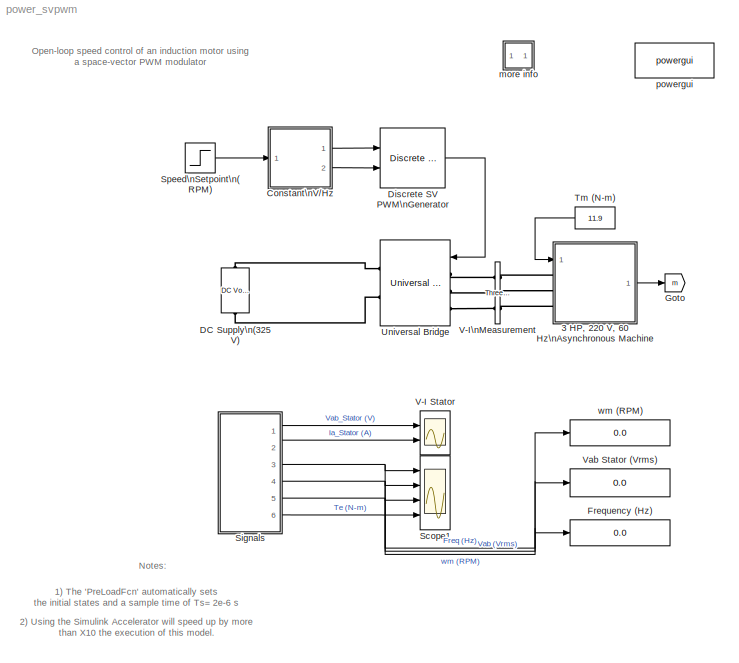
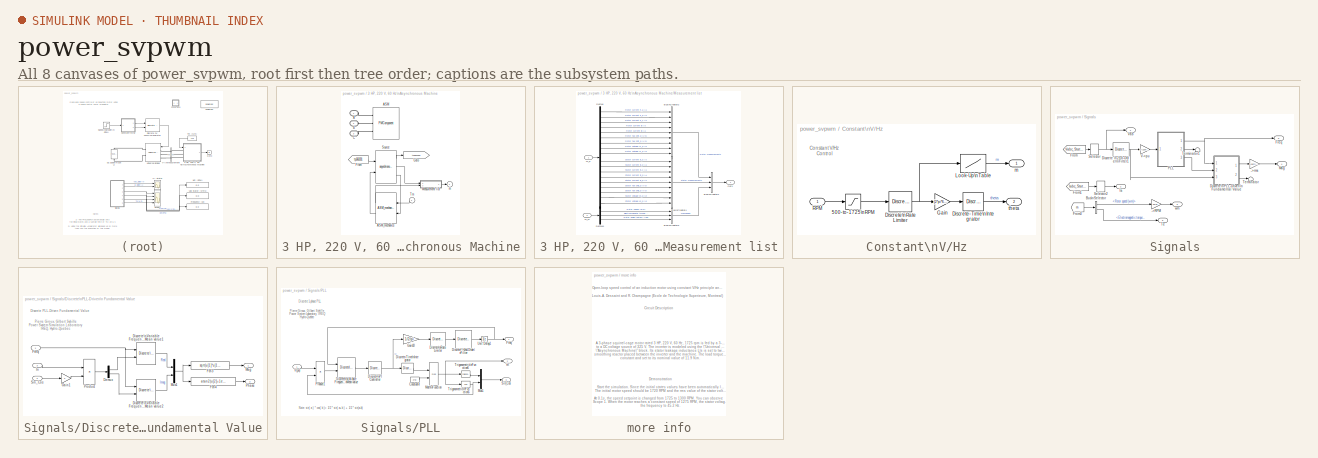
[diagram: thumbnail index - all 8 canvases of the model, root first then tree order]
MODEL power_svpwm
KIND model
CONFIG PreLoadFcn = Ts=2e-6;load xinit_power_svpwm;
BLOCK [SubSystem] 3 HP, 220 V, 60 Hz\nAsynchronous Machine
  AncestorBlock = powerlib/Machines/Asynchronous Machine\nSI Units
  CopyFcn = powericon('psbloadfunction',gcbh,'gotofrom','UpdateGotoTag');
  MaskCallbackString = powericon('AsynchronousMachineCback',gcb,'SI');|powericon('AsynchronousMachineCback',gcb);|powericon('AsynchronousMachineCback',gcb);|||||||||
  MaskDescription = Implements a three-phase asynchronous machine (wound rotor or squirrel cage)\nmodeled in the dq rotor reference frame. Stator and rotor windings are connected\nin wye to an internal neutral point. You can specify initial values for stator and rotor\ncurrents or for  the stator current only.
  MaskDisplay = plot(-55,-30,55,90,p1,p2,p3,p4,p5,p6,p7,p8,p15,p16);color('blue');plot([-30,-10,-10],[70,70,55]);
  MaskEnableString = on,on,on,on,on,on,on,on,on,on,on,on
  MaskHelp = web(psbhelp);
  MaskIconFrame = off
  MaskIconOpaque = off
  MaskIconRotate = port
  MaskIconUnits = autoscale
  MaskInitialization = block = gcb;\nctrl = ReferenceFrame;\none_third=1/3; \nsqrt3_3=sqrt(3)/3;\nsqrt3=sqrt(3);\nswitch RotorType\n    case 1, selWidth=6; elements1=3:6; elements2=1:4;\n    case 2, selWidth=4; elements1=1:4; elements2=3:4;\nend\npowericon('psbloadfunction',block,'gotofrom','Initialize');\n[NominalParameters,Stator,Rotor,Lm,Mechanical,InitialConditions] = powericon('AsynchronousMachineConvert',NominalPa...<+467ch>
  MaskPromptString = Preset model:|-----------------  Show detailed parameters ----------------- |Rotor type:|Reference frame:|Nominal power, voltage (line-line), and frequency [ Pn(VA),Vn(Vrms),fn(Hz) ]:|Stator resistance and inductance[ Rs(ohm)  Lls(H) ]:|Rotor resistance and inductance [ Rr'(ohm)  Llr'(H) ]:|Mutual inductance Lm (H):|Inertia, friction factor and pairs of poles [ J(kg.m^2)  F(N.m.s)  p() ]:|Initial ...<+39ch>
  MaskSelfModifiable = on
  MaskStyleString = popup(No|01:  5 HP   460 V 60Hz 1750 RPM           |02:  10 HP  460 V 60Hz 1760 RPM          |03:  20 HP  460 V 60Hz 1760 RPM          |04:  50 HP  460 V 60Hz 1780 RPM          |05:  100 HP 460 V 60Hz 1780 RPM         |06:  150 HP 460 V 60Hz 1785 RPM         |07:  200 HP 460 V 60Hz 1785 RPM         |08:  5 HP   575 V 60Hz 1750 RPM           |09:  10 HP  575 V 60Hz 1760 RPM          |10:  20 HP  57...<+594ch>
  MaskTabNameString = ,,,,,,,,,,,
  MaskToolTipString = on,on,on,on,on,on,on,on,on,on,on,on
  MaskTunableValueString = on,on,off,on,on,on,on,on,on,on,off,off
  MaskType = Asynchronous Machine
  MaskValueString = No|on|Squirrel-cage|Stationary|[ 3*746, 220, 60 ]|[ 0.435  2*2.0e-3 ]|[ 0.816  2.0e-3 ]|69.31e-3|[ 0.089  0  2 ]|[0.044533 0 11.138 11.138 11.138 -39.6 -159.6 80.4]|1|2000
  MaskVarAliasString = ,,,,,,,,,,,
  MaskVariables = PresetModel=@1;ShowDetailedParameters=@2;RotorType=@3;ReferenceFrame=@4;NominalParameters=@5;Stator=@6;Rotor=@7;Lm=@8;Mechanical=@9;InitialConditions=@10;Units=@11;LoadFlowParameters=@12;
  MaskVisibilityString = on,on,on,on,on,on,on,on,on,on,off,off
  MinAlgLoopOccurrences = off
  Ports = [1, 1, 0, 0, 0, 3]
  RTWSystemCode = Auto
  TreatAsAtomicUnit = off
BLOCK [PMIOPort] 3 HP, 220 V, 60 Hz\nAsynchronous Machine/A
  Port = 1
  Side = Left
BLOCK [PMComponent] 3 HP, 220 V, 60 Hz\nAsynchronous Machine/ASM
  LConnTagsString = A|B|C
  LeftPortType = p1
  MaskIconFrame = on
  MaskIconOpaque = on
  MaskIconRotate = none
  MaskIconUnits = autoscale
  MaskType = InnerPowersysBlock
  PhysicalDomain = powersysdomain
  Ports = [0, 0, 0, 0, 0, 3, 3]
  RConnTagsString = a|b|c
  RightPortType = p1
BLOCK [Reference] 3 HP, 220 V, 60 Hz\nAsynchronous Machine/ASM_mechanics  REF=powerlib_models/Discrete/ASM_mechanics
  Ports = [2, 2]
  ShowPortLabels = on
  SourceBlock = powerlib_models/Discrete/ASM_mechanics
  SourceType = SubSystem
BLOCK [PMIOPort] 3 HP, 220 V, 60 Hz\nAsynchronous Machine/B
  Port = 2
  Side = Left
BLOCK [PMIOPort] 3 HP, 220 V, 60 Hz\nAsynchronous Machine/C
  Port = 3
  Side = Left
BLOCK [From] 3 HP, 220 V, 60 Hz\nAsynchronous Machine/From
  CloseFcn = tagdialog Close
  DialogController = Simulink.DDGSource
  GotoTag = tp361031
BLOCK [Goto] 3 HP, 220 V, 60 Hz\nAsynchronous Machine/Goto
  DialogController = Simulink.DDGSource
  GotoTag = tp361029
  TagVisibility = global
BLOCK [SubSystem] 3 HP, 220 V, 60 Hz\nAsynchronous Machine/Measurement list
  MinAlgLoopOccurrences = off
  Ports = [2, 1]
  RTWSystemCode = Auto
  TreatAsAtomicUnit = off
BLOCK [BusCreator] 3 HP, 220 V, 60 Hz\nAsynchronous Machine/Measurement list/Bus\nCreator1
  DialogController = Simulink.DDGSource_Bus
  DisplayOption = bar
  Inputs = 3
  Ports = [3, 1]
BLOCK [BusCreator] 3 HP, 220 V, 60 Hz\nAsynchronous Machine/Measurement list/Bus\nCreator2
  DialogController = Simulink.DDGSource_Bus
  DisplayOption = bar
  Inputs = 9
  Ports = [9, 1]
BLOCK [BusCreator] 3 HP, 220 V, 60 Hz\nAsynchronous Machine/Measurement list/Bus\nCreator3
  DialogController = Simulink.DDGSource_Bus
  DisplayOption = bar
  Inputs = 3
  Ports = [3, 1]
BLOCK [BusCreator] 3 HP, 220 V, 60 Hz\nAsynchronous Machine/Measurement list/Bus\nCreator4
  DialogController = Simulink.DDGSource_Bus
  DisplayOption = bar
  Inputs = 9
  Ports = [9, 1]
BLOCK [Demux] 3 HP, 220 V, 60 Hz\nAsynchronous Machine/Measurement list/Demux
  DisplayOption = bar
  Outputs = [1,1,1,1,1,1,1,1,1,1,1,1,1,1,1,1,1,1]
  Ports = [1, 18]
BLOCK [Demux] 3 HP, 220 V, 60 Hz\nAsynchronous Machine/Measurement list/Demux1
  DisplayOption = bar
  Outputs = [1,1,1]
  Ports = [1, 3]
BLOCK [Outport] 3 HP, 220 V, 60 Hz\nAsynchronous Machine/Measurement list/Out1
  BusOutputAsStruct = off
  IconDisplay = Port number
BLOCK [Inport] 3 HP, 220 V, 60 Hz\nAsynchronous Machine/Measurement list/m_e
  IconDisplay = Port number
  LatchInput = off
  Port = 1
BLOCK [Inport] 3 HP, 220 V, 60 Hz\nAsynchronous Machine/Measurement list/m_m
  IconDisplay = Port number
  LatchInput = off
  Port = 2
BLOCK [Reference] 3 HP, 220 V, 60 Hz\nAsynchronous Machine/Source  REF=powerlib_models/Discrete/asynchronous_machine
  Ports = [2, 3]
  ShowPortLabels = on
  SourceBlock = powerlib_models/Discrete/asynchronous_machine
  SourceType = SubSystem
BLOCK [Inport] 3 HP, 220 V, 60 Hz\nAsynchronous Machine/Tm
  IconDisplay = Port number
  LatchInput = off
  Port = 1
BLOCK [Outport] 3 HP, 220 V, 60 Hz\nAsynchronous Machine/m
  BusOutputAsStruct = off
  IconDisplay = Port number
  InitialOutput = 0
BLOCK [SubSystem] Constant\nV//Hz
  MinAlgLoopOccurrences = off
  Ports = [1, 2]
  RTWSystemCode = Auto
  TreatAsAtomicUnit = off
BLOCK [Saturate] Constant\nV//Hz/500-to-1725\nRPM
  LowerLimit = 500
  UpperLimit = 1725
BLOCK [DiscreteIntegrator] Constant\nV//Hz/Discrete-Time\nIntegrator
  ExternalReset = none
  ICPrevOutput = DiscIntNeverNeededParam
  ICPrevScaledInput = DiscIntNeverNeededParam
  InitialConditionSource = internal
  IntegratorMethod = Integration: Forward Euler
  Ports = [1, 1]
  SampleTime = Ts
BLOCK [Reference] Constant\nV//Hz/Discrete\nRate Limiter  REF=powerlib_extras/Discrete \nControl Blocks/Discrete\nRate Limiter
  F = -500
  Ports = [1, 1]
  R = 500
  ShowPortLabels = on
  SourceBlock = powerlib_extras/Discrete \nControl Blocks/Discrete\nRate Limiter
  SourceType = Unknown
  Ts = Ts
  Vinit = 1725
BLOCK [Gain] Constant\nV//Hz/Gain
  Gain = (2*pi*60)/1725
BLOCK [Lookup] Constant\nV//Hz/Look-Up\nTable
  DialogController = Simulink.DDGSource
  InputValues = [500 1725 2500]
  OutputValues = [0.29 1 1]*0.957
BLOCK [Inport] Constant\nV//Hz/RPM
  IconDisplay = Port number
  LatchInput = off
  Port = 1
BLOCK [Outport] Constant\nV//Hz/m
  BusOutputAsStruct = off
  IconDisplay = Port number
BLOCK [Outport] Constant\nV//Hz/theta
  BusOutputAsStruct = off
  IconDisplay = Port number
  Port = 2
BLOCK [Reference] DC Supply\n(325 V)  REF=powerlib/Electrical\nSources/DC Voltage Source
  Amplitude = 325
  Measurements = None
  Ports = [0, 0, 0, 0, 0, 1, 1]
  ShowPortLabels = on
  SourceBlock = powerlib/Electrical\nSources/DC Voltage Source
  SourceType = DC Voltage Source
BLOCK [Reference] Discrete SV PWM\nGenerator  REF=powerlib_extras/Discrete \nControl Blocks/Discrete SV PWM\nGenerator
  Fc = 1980
  InputType = Magnitude-Angle (rad)
  ParUref = [0.8 -30 50]
  Ports = [2, 1]
  ShowPortLabels = on
  SourceBlock = powerlib_extras/Discrete \nControl Blocks/Discrete SV PWM\nGenerator
  SourceType = Discrete SV PWM Generator
  SwitchingPattern = Pattern #1
  Ts = Ts
BLOCK [Display] Frequency (Hz)
  Decimation = 1
  Format = bank
  Ports = [1]
  SampleTime = Ts*1000
BLOCK [Goto] Goto
  DialogController = Simulink.DDGSource
  GotoTag = m
  TagVisibility = global
BLOCK [Scope] Scope1
  DataFormat = StructureWithTime
  LimitDataPoints = off
  NumInputPorts = 4
  Ports = [4]
  SampleInput = on
  SampleTime = Ts*100
  SaveName = VI_Stator1
  TimeRange = 1.5
  YMax = 1585~220.05~60.0005~60
  YMin = 1550~219.825~59.997~-30
  ZoomMode = yonly
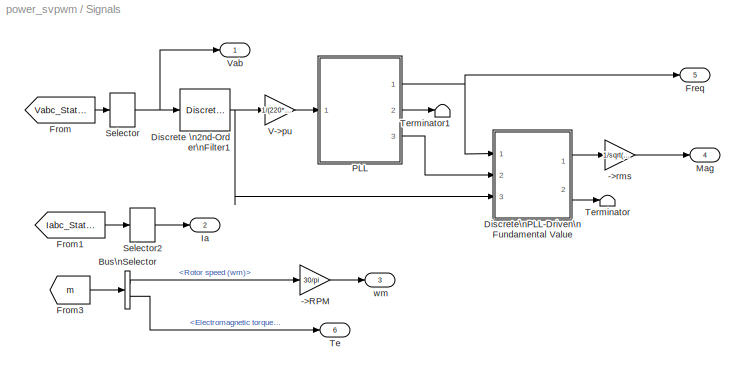
BLOCK [SubSystem] Signals
  MinAlgLoopOccurrences = off
  Ports = [0, 6]
  RTWSystemCode = Auto
  TreatAsAtomicUnit = off
BLOCK [Gain] Signals/->RPM
  Gain = 30/pi
BLOCK [Gain] Signals/->rms
  Gain = 1/sqrt(2)
BLOCK [BusSelector] Signals/Bus\nSelector
  DialogController = Simulink.DDGSource_Bus
  OutputSignals = Mechanical.Rotor speed (wm),Mechanical.Electromagnetic torque Te (N*m)
  Ports = [1, 2]
BLOCK [Reference] Signals/Discrete \n2nd-Order\nFilter1  REF=powerlib_extras/Discrete \nControl Blocks/Discrete \n2nd-Order\nFilter
  FilterType = Lowpass
  Fo = 2000
  Initialize = on
  PlotResponse = off
  Ports = [1, 1]
  ShowPortLabels = on
  SourceBlock = powerlib_extras/Discrete \nControl Blocks/Discrete \n2nd-Order\nFilter
  SourceType = Discrete 2nd-Order Filter
  Ts = Ts
  Vac_Init = [1 30 60]
  Vdc_Init = 0
  Zeta = 0.707
  param1 = [1 500 1]
BLOCK [SubSystem] Signals/Discrete\nPLL-Driven\n Fundamental Value
  MaskCallbackString = ||
  MaskDescription = This discrete block computes the fundamental value of the input signal (port In) over a running window of one cycle of a specified fundamental frequency (port Freq). Input port \"Sin_Cos\" (a two-dimension signal) provides the reference frame required for the computation.. \n First and second outputs return respectively the magnitude and phase (in degrees relative to the PLL phase) of the fundamen...<+129ch>
  MaskEnableString = on,on,on
  MaskIconFrame = on
  MaskIconOpaque = on
  MaskIconRotate = none
  MaskIconUnits = autoscale
  MaskInitialization = Real_Init=Par_Init(1)*cos(pi/180*Par_Init(2));\nImag_Init=Par_Init(1)*sin(pi/180*Par_Init(2));\n\n\n
  MaskPromptString = Initial fundamental frequency (Hz):|Initial input: [ Mag  Phase-relative-to-PLL(degrees) ]|Sample time:
  MaskStyleString = edit,edit,edit
  MaskTabNameString = ,,
  MaskToolTipString = on,on,on
  MaskTunableValueString = on,on,on
  MaskType = Discrete PLL-Driven Fundamental Value
  MaskValueString = 60|[220*sqrt(2) 0]|Ts*20
  MaskVarAliasString = ,,
  MaskVariables = Finit=@1;Par_Init=@2;Ts=@3;
  MaskVisibilityString = on,on,on
  MinAlgLoopOccurrences = off
  Ports = [3, 2]
  RTWSystemCode = Auto
  TreatAsAtomicUnit = off
BLOCK [Demux] Signals/Discrete\nPLL-Driven\n Fundamental Value/Demux
  Outputs = 2
  Ports = [1, 2]
BLOCK [Reference] Signals/Discrete\nPLL-Driven\n Fundamental Value/Discrete\nVariable Frequency\nMean value1  REF=powerlib_extras/Discrete\nMeasurements/Discrete\nVariable Frequency\nMean value
  Finit = Finit
  Fmin = 20
  Ports = [2, 1]
  ShowPortLabels = on
  SourceBlock = powerlib_extras/Discrete\nMeasurements/Discrete\nVariable Frequency\nMean value
  SourceType = Discrete Variable-Frequency Mean Value
  Ts = Ts
  Vinit = Real_Init
BLOCK [Reference] Signals/Discrete\nPLL-Driven\n Fundamental Value/Discrete\nVariable Frequency\nMean value2  REF=powerlib_extras/Discrete\nMeasurements/Discrete\nVariable Frequency\nMean value
  Finit = Finit
  Fmin = 20
  Ports = [2, 1]
  ShowPortLabels = on
  SourceBlock = powerlib_extras/Discrete\nMeasurements/Discrete\nVariable Frequency\nMean value
  SourceType = Discrete Variable-Frequency Mean Value
  Ts = Ts
  Vinit = Imag_Init
BLOCK [Fcn] Signals/Discrete\nPLL-Driven\n Fundamental Value/Fcn3
  Expr = sqrt(u[1]*u[1]+u[2]*u[2])
BLOCK [Fcn] Signals/Discrete\nPLL-Driven\n Fundamental Value/Fcn4
  Expr = atan2(u[2]+1e-6,u[1])*180/pi
BLOCK [Inport] Signals/Discrete\nPLL-Driven\n Fundamental Value/Freq
  IconDisplay = Port number
  LatchInput = off
  Port = 1
BLOCK [Gain] Signals/Discrete\nPLL-Driven\n Fundamental Value/Gain1
  Gain = 2
BLOCK [Inport] Signals/Discrete\nPLL-Driven\n Fundamental Value/In
  IconDisplay = Port number
  LatchInput = off
  Port = 3
BLOCK [Outport] Signals/Discrete\nPLL-Driven\n Fundamental Value/Mag
  BusOutputAsStruct = off
  IconDisplay = Port number
BLOCK [Mux] Signals/Discrete\nPLL-Driven\n Fundamental Value/Mux1
  Inputs = 2
  Ports = [2, 1]
BLOCK [Outport] Signals/Discrete\nPLL-Driven\n Fundamental Value/Phase
  BusOutputAsStruct = off
  IconDisplay = Port number
  Port = 2
BLOCK [Product] Signals/Discrete\nPLL-Driven\n Fundamental Value/Product
  Ports = [2, 1]
  RndMeth = Floor
BLOCK [Inport] Signals/Discrete\nPLL-Driven\n Fundamental Value/Sin_Cos
  IconDisplay = Port number
  LatchInput = off
  Port = 2
BLOCK [Outport] Signals/Freq
  BusOutputAsStruct = off
  IconDisplay = Port number
  Port = 5
BLOCK [From] Signals/From
  CloseFcn = tagdialog Close
  DialogController = Simulink.DDGSource
  GotoTag = Vabc_Stator
BLOCK [From] Signals/From1
  CloseFcn = tagdialog Close
  DialogController = Simulink.DDGSource
  GotoTag = Iabc_Stator
BLOCK [From] Signals/From3
  CloseFcn = tagdialog Close
  DialogController = Simulink.DDGSource
  GotoTag = m
BLOCK [Outport] Signals/Ia
  BusOutputAsStruct = off
  IconDisplay = Port number
  Port = 2
BLOCK [Outport] Signals/Mag
  BusOutputAsStruct = off
  IconDisplay = Port number
  Port = 4
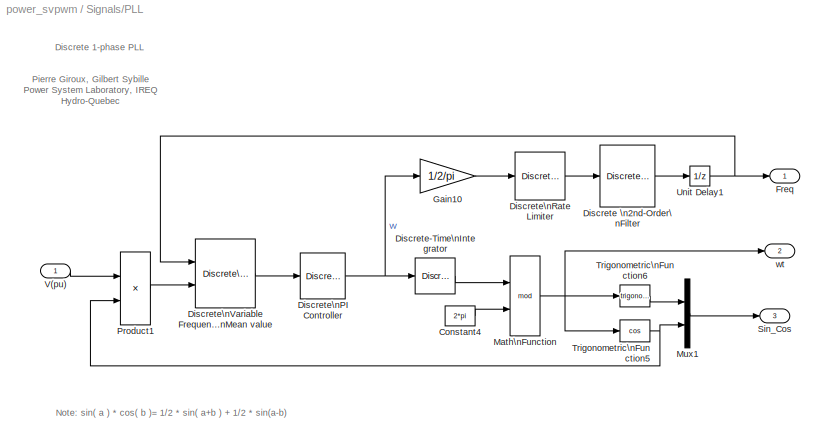
BLOCK [SubSystem] Signals/PLL
  MaskCallbackString = ||
  MaskDescription = This Phase Locked Loop (PLL) system can be used  to synchronize on a variable frequency sinusoidal signal.\n\nInput 1: Normalized input signal V(pu)\n\nOutput 1:  Measured frequency (Hz) = w/(2pi)\nOutput 2:  Ramp w.t  varying between  0 and 2*pi, synchronized on the zero-crossing (rising) of  the input signal\nOutput 3: Vector [sin(wt) cos(wt)]\n
  MaskEnableString = on,on,on
  MaskIconFrame = on
  MaskIconOpaque = on
  MaskIconRotate = none
  MaskIconUnits = autoscale
  MaskInitialization = Kp=ParK(1);\nKi=ParK(2);\nPhase_Init=Par_Init(1);\nFinit=Par_Init(2);
  MaskPromptString = Initial input:[ Phase(degrees)   Frequency(Hz) ]|Regulator gains [ Kp  Ki ]|Sample time:
  MaskStyleString = edit,edit,edit
  MaskTabNameString = ,,
  MaskToolTipString = on,on,on
  MaskTunableValueString = on,on,on
  MaskType = Discrete 1-phase PLL
  MaskValueString = [27.52 60]|[120 2800]|Ts*20
  MaskVarAliasString = ,,
  MaskVariables = Par_Init=@1;ParK=@2;Ts=@3;
  MaskVisibilityString = on,on,on
  MinAlgLoopOccurrences = off
  Ports = [1, 3]
  RTWSystemCode = Auto
  TreatAsAtomicUnit = off
BLOCK [Constant] Signals/PLL/Constant4
  Value = 2*pi
BLOCK [Reference] Signals/PLL/Discrete \n2nd-Order\nFilter  REF=powerlib_extras/Discrete \nControl Blocks/Discrete \n2nd-Order\nFilter
  FilterType = Lowpass
  Fo = 25
  Initialize = on
  PlotResponse = off
  Ports = [1, 1]
  ShowPortLabels = on
  SourceBlock = powerlib_extras/Discrete \nControl Blocks/Discrete \n2nd-Order\nFilter
  SourceType = Discrete 2nd-Order Filter
  Ts = Ts
  Vac_Init = [0 0  Finit]
  Vdc_Init = Finit
  Zeta = 0.707
  param1 = [1 500 0.1]
BLOCK [DiscreteIntegrator] Signals/PLL/Discrete-Time\nIntegrator
  ExternalReset = none
  ICPrevOutput = DiscIntNeverNeededParam
  ICPrevScaledInput = DiscIntNeverNeededParam
  InitialCondition = Phase_Init*pi/180
  InitialConditionSource = internal
  IntegratorMethod = Integration: Forward Euler
  LowerSaturationLimit = 0
  Ports = [1, 1]
  SampleTime = Ts
  UpperSaturationLimit = 0
BLOCK [Reference] Signals/PLL/Discrete\nPI Controller  REF=powerlib_extras/Discrete \nControl Blocks/Discrete\nPI Controller
  Init = 2*pi*Finit
  Ki = Ki
  Kp = Kp
  Par_Limits = [4  0.25]*2*pi*Finit
  Ports = [1, 1]
  ShowPortLabels = on
  SourceBlock = powerlib_extras/Discrete \nControl Blocks/Discrete\nPI Controller
  SourceType = Discrete PI Controller
  Ts = Ts
BLOCK [Reference] Signals/PLL/Discrete\nRate Limiter  REF=powerlib_extras/Discrete \nControl Blocks/Discrete\nRate Limiter
  F = -30
  Ports = [1, 1]
  R = 30
  ShowPortLabels = on
  SourceBlock = powerlib_extras/Discrete \nControl Blocks/Discrete\nRate Limiter
  SourceType = Unknown
  Ts = Ts
  Vinit = Finit
BLOCK [Reference] Signals/PLL/Discrete\nVariable Frequency\nMean value  REF=powerlib_extras/Discrete\nMeasurements/Discrete\nVariable Frequency\nMean value
  Finit = Finit
  Fmin = 10
  Ports = [2, 1]
  ShowPortLabels = on
  SourceBlock = powerlib_extras/Discrete\nMeasurements/Discrete\nVariable Frequency\nMean value
  SourceType = Discrete Variable-Frequency Mean Value
  Ts = Ts
  Vinit = 0
BLOCK [Outport] Signals/PLL/Freq
  BusOutputAsStruct = off
  IconDisplay = Port number
BLOCK [Gain] Signals/PLL/Gain10
  Gain = 1/2/pi
BLOCK [Math] Signals/PLL/Math\nFunction
  Operator = mod
  Ports = [2, 1]
BLOCK [Mux] Signals/PLL/Mux1
  DisplayOption = bar
  Inputs = 2
  Ports = [2, 1]
BLOCK [Product] Signals/PLL/Product1
  Ports = [2, 1]
  RndMeth = Floor
BLOCK [Outport] Signals/PLL/Sin_Cos
  BusOutputAsStruct = off
  IconDisplay = Port number
  Port = 3
BLOCK [Trigonometry] Signals/PLL/Trigonometric\nFunction5
  Operator = cos
  Ports = [1, 1]
BLOCK [Trigonometry] Signals/PLL/Trigonometric\nFunction6
  Ports = [1, 1]
BLOCK [UnitDelay] Signals/PLL/Unit Delay1
  SampleTime = Ts
  X0 = Finit
BLOCK [Inport] Signals/PLL/V(pu)
  IconDisplay = Port number
  LatchInput = off
  Port = 1
BLOCK [Outport] Signals/PLL/wt
  BusOutputAsStruct = off
  IconDisplay = Port number
  Port = 2
BLOCK [Selector] Signals/Selector
  Elements = [1]
  InputPortWidth = 3
  Ports = [1, 1]
BLOCK [Selector] Signals/Selector2
  Elements = [1]
  InputPortWidth = 3
  Ports = [1, 1]
BLOCK [Outport] Signals/Te
  BusOutputAsStruct = off
  IconDisplay = Port number
  Port = 6
BLOCK [Terminator] Signals/Terminator
BLOCK [Terminator] Signals/Terminator1
BLOCK [Gain] Signals/V->pu
  Gain = 1/(220*sqrt(2))
BLOCK [Outport] Signals/Vab
  BusOutputAsStruct = off
  IconDisplay = Port number
BLOCK [Outport] Signals/wm
  BusOutputAsStruct = off
  IconDisplay = Port number
  Port = 3
BLOCK [Step] Speed\nSetpoint\n(RPM)
  After = 1300
  Before = 1725
  SampleTime = Ts
  Time = 0.1
BLOCK [Constant] Tm (N-m)
  Value = 11.9
BLOCK [Reference] Universal Bridge  REF=powerlib/Power\nElectronics/Universal Bridge
  Arms = 3
  Device = MOSFET / Diodes
  ForwardVoltage = 0
  ForwardVoltages = [  0  0  ]
  GTOparameters = [ 10e-6 , 20e-6 ]
  IGBTparameters = [ 1e-6 , 2e-6 ]
  Lon = 0
  Measurements = None
  Ports = [1, 0, 0, 0, 0, 3, 2]
  Ron = 0.2e-3
  ShowPortLabels = on
  SnubberCapacitance = inf
  SnubberResistance = 1e5
  SourceBlock = powerlib/Power\nElectronics/Universal Bridge
  SourceType = Universal Bridge
BLOCK [Scope] V-I Stator
  DataFormat = StructureWithTime
  LimitDataPoints = off
  NumInputPorts = 2
  Ports = [2]
  SampleInput = on
  SampleTime = Ts*5
  SaveName = VI_Stator
  SaveToWorkspace = on
  TimeRange = 0.1
  YMax = 400~25
  YMin = -400~-25
  ZoomMode = yonly
BLOCK [Reference] V-I\nMeasurement  REF=powerlib/Measurements/Three-Phase\nV-I Measurement
  CurrentMeasurement = yes
  Ipu = off
  LabelI = Iabc_Stator
  LabelV = Vabc_Stator
  OutputType = Magnitude
  PSBequivalent = 0
  Pbase = 100e6
  PhasorSimulation = off
  Ports = [0, 0, 0, 0, 0, 3, 3]
  SetLabelI = on
  SetLabelV = on
  ShowPortLabels = on
  SourceBlock = powerlib/Measurements/Three-Phase\nV-I Measurement
  SourceType = Three-Phase VI Measurement
  Vbase = 500e3
  VoltageMeasurement = phase-to-phase
  Vpu = off
BLOCK [Display] Vab Stator (Vrms)
  Decimation = 1
  Format = bank
  Ports = [1]
  SampleTime = Ts*1000
BLOCK [SubSystem] more info
  MaskDisplay = disp('?')
  MaskIconFrame = on
  MaskIconOpaque = on
  MaskIconRotate = none
  MaskIconUnits = autoscale
  MinAlgLoopOccurrences = off
  Ports = []
  RTWSystemCode = Auto
  TreatAsAtomicUnit = off
BLOCK [Reference] powergui  REF=powerlib/powergui
  DisplayStyle = 1
  Frange = [0:2:500]
  FreqAxis = off
  MaxFrequency = 5000
  Ports = []
  Priority = 2
  RmsSteady = 1
  ShowPortLabels = on
  SourceBlock = powerlib/powergui
  SourceType = PSB option menu block
  StartTime = 0.05
  Ts = Ts
  Xlog = on
  Ylog = off
  ZoomFFT = on
  cycles = 2
  display = off
  echomessages = off
  frequency = 60
  frequencyindice = 1
  frequencyindicesteady = 1
  fundamental = 60
  methode = off
  save = off
  structure = VI_Stator
  variable = ZData
BLOCK [Display] wm (RPM)
  Decimation = 1
  Ports = [1]
  SampleTime = Ts*1000
ANNOTATION (root): 1) The 'PreLoadFcn' automatically sets \n the initial states and a sample time of Ts= 2e-6 s
ANNOTATION (root): 2) Using the Simulink Accelerator will speed up by more\n than X10 the execution of this model.
ANNOTATION (root): Notes:
ANNOTATION (root): Open-loop speed control of an induction motor using\na space-vector PWM modulator
ANNOTATION Constant\nV//Hz: Constant V/Hz\nControl
ANNOTATION Signals/Discrete\nPLL-Driven\n Fundamental Value: Discrete PLL-Driven Fundamental Value
ANNOTATION Signals/Discrete\nPLL-Driven\n Fundamental Value: Pierre Giroux, Gilbert Sybille\nPower System Simulation Laboratory\nIREQ, Hydro-Quebec
ANNOTATION Signals/PLL: Discrete 1-phase PLL
ANNOTATION Signals/PLL: Note: sin( a ) * cos( b )= 1/2 * sin( a+b ) + 1/2 * sin(a-b)
ANNOTATION Signals/PLL: Pierre Giroux, Gilbert Sybille\nPower System Laboratory, IREQ\nHydro-Quebec
ANNOTATION more info: A 3-phase squirrel-cage motor rated 3 HP, 220 V, 60 Hz, 1725 rpm is fed by a 3-phase MOSFET inverter connected \nto a DC voltage source of 325 V. The inverter is modeled using the \"Universal Bridge\" block and the motor by the \n\"Asynchronous Machine\" block. Its stator leakage inductance Lls is set to twice its actual value to simulate the effect of a \nsmoothing reactor placed between the inve...<+610ch>
ANNOTATION more info: Circuit Description
ANNOTATION more info: Demonstration
ANNOTATION more info: Louis-A. Dessaint and R. Champagne (Ecole de Technologie Superieure, Montreal)
ANNOTATION more info: Open-loop speed control of an induction motor using constant V/Hz principle and SV PWM technique
ANNOTATION more info: Start the simulation. Since the initial states values have been automatically loaded, the simulation should start in steady-state.\nThe initial motor speed should be 1720 RPM and the rms value of the stator voltages should be 220V@60Hz. \n \nAt 0.1s, the speed setpoint is changed from 1725 to 1300 RPM. You can observe the system dynamic looking inside\nScope 1. When the motor reaches a constant sp...<+279ch>
LINE 3 HP, 220 V, 60 Hz\nAsynchronous Machine/ASM_mechanics:1 -> 3 HP, 220 V, 60 Hz\nAsynchronous Machine/Measurement list:2
LINE 3 HP, 220 V, 60 Hz\nAsynchronous Machine/ASM_mechanics:2 -> 3 HP, 220 V, 60 Hz\nAsynchronous Machine/Source:2
LINE 3 HP, 220 V, 60 Hz\nAsynchronous Machine/From:1 -> 3 HP, 220 V, 60 Hz\nAsynchronous Machine/Source:1
LINE 3 HP, 220 V, 60 Hz\nAsynchronous Machine/Measurement list/Bus\nCreator1:1 -> 3 HP, 220 V, 60 Hz\nAsynchronous Machine/Measurement list/Out1:1
LINE 3 HP, 220 V, 60 Hz\nAsynchronous Machine/Measurement list/Bus\nCreator2:1 -> 3 HP, 220 V, 60 Hz\nAsynchronous Machine/Measurement list/Bus\nCreator1:1
LINE 3 HP, 220 V, 60 Hz\nAsynchronous Machine/Measurement list/Bus\nCreator3:1 -> 3 HP, 220 V, 60 Hz\nAsynchronous Machine/Measurement list/Bus\nCreator1:3
LINE 3 HP, 220 V, 60 Hz\nAsynchronous Machine/Measurement list/Bus\nCreator4:1 -> 3 HP, 220 V, 60 Hz\nAsynchronous Machine/Measurement list/Bus\nCreator1:2
LINE 3 HP, 220 V, 60 Hz\nAsynchronous Machine/Measurement list/Demux1:1 -> 3 HP, 220 V, 60 Hz\nAsynchronous Machine/Measurement list/Bus\nCreator3:1
LINE 3 HP, 220 V, 60 Hz\nAsynchronous Machine/Measurement list/Demux1:2 -> 3 HP, 220 V, 60 Hz\nAsynchronous Machine/Measurement list/Bus\nCreator3:2
LINE 3 HP, 220 V, 60 Hz\nAsynchronous Machine/Measurement list/Demux1:3 -> 3 HP, 220 V, 60 Hz\nAsynchronous Machine/Measurement list/Bus\nCreator3:3
LINE 3 HP, 220 V, 60 Hz\nAsynchronous Machine/Measurement list/Demux:1 -> 3 HP, 220 V, 60 Hz\nAsynchronous Machine/Measurement list/Bus\nCreator2:1
LINE 3 HP, 220 V, 60 Hz\nAsynchronous Machine/Measurement list/Demux:10 -> 3 HP, 220 V, 60 Hz\nAsynchronous Machine/Measurement list/Bus\nCreator4:1
LINE 3 HP, 220 V, 60 Hz\nAsynchronous Machine/Measurement list/Demux:11 -> 3 HP, 220 V, 60 Hz\nAsynchronous Machine/Measurement list/Bus\nCreator4:2
LINE 3 HP, 220 V, 60 Hz\nAsynchronous Machine/Measurement list/Demux:12 -> 3 HP, 220 V, 60 Hz\nAsynchronous Machine/Measurement list/Bus\nCreator4:3
LINE 3 HP, 220 V, 60 Hz\nAsynchronous Machine/Measurement list/Demux:13 -> 3 HP, 220 V, 60 Hz\nAsynchronous Machine/Measurement list/Bus\nCreator4:4
LINE 3 HP, 220 V, 60 Hz\nAsynchronous Machine/Measurement list/Demux:14 -> 3 HP, 220 V, 60 Hz\nAsynchronous Machine/Measurement list/Bus\nCreator4:5
LINE 3 HP, 220 V, 60 Hz\nAsynchronous Machine/Measurement list/Demux:15 -> 3 HP, 220 V, 60 Hz\nAsynchronous Machine/Measurement list/Bus\nCreator4:6
LINE 3 HP, 220 V, 60 Hz\nAsynchronous Machine/Measurement list/Demux:16 -> 3 HP, 220 V, 60 Hz\nAsynchronous Machine/Measurement list/Bus\nCreator4:7
LINE 3 HP, 220 V, 60 Hz\nAsynchronous Machine/Measurement list/Demux:17 -> 3 HP, 220 V, 60 Hz\nAsynchronous Machine/Measurement list/Bus\nCreator4:8
LINE 3 HP, 220 V, 60 Hz\nAsynchronous Machine/Measurement list/Demux:18 -> 3 HP, 220 V, 60 Hz\nAsynchronous Machine/Measurement list/Bus\nCreator4:9
LINE 3 HP, 220 V, 60 Hz\nAsynchronous Machine/Measurement list/Demux:2 -> 3 HP, 220 V, 60 Hz\nAsynchronous Machine/Measurement list/Bus\nCreator2:2
LINE 3 HP, 220 V, 60 Hz\nAsynchronous Machine/Measurement list/Demux:3 -> 3 HP, 220 V, 60 Hz\nAsynchronous Machine/Measurement list/Bus\nCreator2:3
LINE 3 HP, 220 V, 60 Hz\nAsynchronous Machine/Measurement list/Demux:4 -> 3 HP, 220 V, 60 Hz\nAsynchronous Machine/Measurement list/Bus\nCreator2:4
LINE 3 HP, 220 V, 60 Hz\nAsynchronous Machine/Measurement list/Demux:5 -> 3 HP, 220 V, 60 Hz\nAsynchronous Machine/Measurement list/Bus\nCreator2:5
LINE 3 HP, 220 V, 60 Hz\nAsynchronous Machine/Measurement list/Demux:6 -> 3 HP, 220 V, 60 Hz\nAsynchronous Machine/Measurement list/Bus\nCreator2:6
LINE 3 HP, 220 V, 60 Hz\nAsynchronous Machine/Measurement list/Demux:7 -> 3 HP, 220 V, 60 Hz\nAsynchronous Machine/Measurement list/Bus\nCreator2:7
LINE 3 HP, 220 V, 60 Hz\nAsynchronous Machine/Measurement list/Demux:8 -> 3 HP, 220 V, 60 Hz\nAsynchronous Machine/Measurement list/Bus\nCreator2:8
LINE 3 HP, 220 V, 60 Hz\nAsynchronous Machine/Measurement list/Demux:9 -> 3 HP, 220 V, 60 Hz\nAsynchronous Machine/Measurement list/Bus\nCreator2:9
LINE 3 HP, 220 V, 60 Hz\nAsynchronous Machine/Measurement list/m_e:1 -> 3 HP, 220 V, 60 Hz\nAsynchronous Machine/Measurement list/Demux:1
LINE 3 HP, 220 V, 60 Hz\nAsynchronous Machine/Measurement list/m_m:1 -> 3 HP, 220 V, 60 Hz\nAsynchronous Machine/Measurement list/Demux1:1
LINE 3 HP, 220 V, 60 Hz\nAsynchronous Machine/Measurement list:1 -> 3 HP, 220 V, 60 Hz\nAsynchronous Machine/m:1
LINE 3 HP, 220 V, 60 Hz\nAsynchronous Machine/Source:1 -> 3 HP, 220 V, 60 Hz\nAsynchronous Machine/Goto:1
LINE 3 HP, 220 V, 60 Hz\nAsynchronous Machine/Source:2 -> 3 HP, 220 V, 60 Hz\nAsynchronous Machine/Measurement list:1
LINE 3 HP, 220 V, 60 Hz\nAsynchronous Machine/Source:3 -> 3 HP, 220 V, 60 Hz\nAsynchronous Machine/ASM_mechanics:2
LINE 3 HP, 220 V, 60 Hz\nAsynchronous Machine/Tm:1 -> 3 HP, 220 V, 60 Hz\nAsynchronous Machine/ASM_mechanics:1
LINE 3 HP, 220 V, 60 Hz\nAsynchronous Machine:1 -> Goto:1
LINE Constant\nV//Hz/500-to-1725\nRPM:1 -> Constant\nV//Hz/Discrete\nRate Limiter:1
LINE Constant\nV//Hz/Discrete-Time\nIntegrator:1 -> Constant\nV//Hz/theta:1
NET Constant\nV//Hz/Discrete\nRate Limiter:1 -> Constant\nV//Hz/Gain:1, Constant\nV//Hz/Look-Up\nTable:1
LINE Constant\nV//Hz/Gain:1 -> Constant\nV//Hz/Discrete-Time\nIntegrator:1
LINE Constant\nV//Hz/Look-Up\nTable:1 -> Constant\nV//Hz/m:1
LINE Constant\nV//Hz/RPM:1 -> Constant\nV//Hz/500-to-1725\nRPM:1
LINE Constant\nV//Hz:1 -> Discrete SV PWM\nGenerator:1
LINE Constant\nV//Hz:2 -> Discrete SV PWM\nGenerator:2
LINE Discrete SV PWM\nGenerator:1 -> Universal Bridge:1
LINE Signals/->RPM:1 -> Signals/wm:1
LINE Signals/->rms:1 -> Signals/Mag:1
LINE Signals/Bus\nSelector:1 -> Signals/->RPM:1
LINE Signals/Bus\nSelector:2 -> Signals/Te:1
NET Signals/Discrete \n2nd-Order\nFilter1:1 -> Signals/Discrete\nPLL-Driven\n Fundamental Value:3, Signals/V->pu:1
LINE Signals/Discrete\nPLL-Driven\n Fundamental Value/Demux:1 -> Signals/Discrete\nPLL-Driven\n Fundamental Value/Discrete\nVariable Frequency\nMean value1:2
LINE Signals/Discrete\nPLL-Driven\n Fundamental Value/Demux:2 -> Signals/Discrete\nPLL-Driven\n Fundamental Value/Discrete\nVariable Frequency\nMean value2:2
LINE Signals/Discrete\nPLL-Driven\n Fundamental Value/Discrete\nVariable Frequency\nMean value1:1 -> Signals/Discrete\nPLL-Driven\n Fundamental Value/Mux1:1
LINE Signals/Discrete\nPLL-Driven\n Fundamental Value/Discrete\nVariable Frequency\nMean value2:1 -> Signals/Discrete\nPLL-Driven\n Fundamental Value/Mux1:2
LINE Signals/Discrete\nPLL-Driven\n Fundamental Value/Fcn3:1 -> Signals/Discrete\nPLL-Driven\n Fundamental Value/Mag:1
LINE Signals/Discrete\nPLL-Driven\n Fundamental Value/Fcn4:1 -> Signals/Discrete\nPLL-Driven\n Fundamental Value/Phase:1
NET Signals/Discrete\nPLL-Driven\n Fundamental Value/Freq:1 -> Signals/Discrete\nPLL-Driven\n Fundamental Value/Discrete\nVariable Frequency\nMean value1:1, Signals/Discrete\nPLL-Driven\n Fundamental Value/Discrete\nVariable Frequency\nMean value2:1
LINE Signals/Discrete\nPLL-Driven\n Fundamental Value/Gain1:1 -> Signals/Discrete\nPLL-Driven\n Fundamental Value/Product:2
LINE Signals/Discrete\nPLL-Driven\n Fundamental Value/In:1 -> Signals/Discrete\nPLL-Driven\n Fundamental Value/Product:1
NET Signals/Discrete\nPLL-Driven\n Fundamental Value/Mux1:1 -> Signals/Discrete\nPLL-Driven\n Fundamental Value/Fcn3:1, Signals/Discrete\nPLL-Driven\n Fundamental Value/Fcn4:1
LINE Signals/Discrete\nPLL-Driven\n Fundamental Value/Product:1 -> Signals/Discrete\nPLL-Driven\n Fundamental Value/Demux:1
LINE Signals/Discrete\nPLL-Driven\n Fundamental Value/Sin_Cos:1 -> Signals/Discrete\nPLL-Driven\n Fundamental Value/Gain1:1
LINE Signals/Discrete\nPLL-Driven\n Fundamental Value:1 -> Signals/->rms:1
LINE Signals/Discrete\nPLL-Driven\n Fundamental Value:2 -> Signals/Terminator:1
LINE Signals/From1:1 -> Signals/Selector2:1
LINE Signals/From3:1 -> Signals/Bus\nSelector:1
LINE Signals/From:1 -> Signals/Selector:1
LINE Signals/PLL/Constant4:1 -> Signals/PLL/Math\nFunction:2
LINE Signals/PLL/Discrete \n2nd-Order\nFilter:1 -> Signals/PLL/Unit Delay1:1
LINE Signals/PLL/Discrete-Time\nIntegrator:1 -> Signals/PLL/Math\nFunction:1
NET Signals/PLL/Discrete\nPI Controller:1 -> Signals/PLL/Discrete-Time\nIntegrator:1, Signals/PLL/Gain10:1
LINE Signals/PLL/Discrete\nRate Limiter:1 -> Signals/PLL/Discrete \n2nd-Order\nFilter:1
LINE Signals/PLL/Discrete\nVariable Frequency\nMean value:1 -> Signals/PLL/Discrete\nPI Controller:1
LINE Signals/PLL/Gain10:1 -> Signals/PLL/Discrete\nRate Limiter:1
NET Signals/PLL/Math\nFunction:1 -> Signals/PLL/Trigonometric\nFunction5:1, Signals/PLL/Trigonometric\nFunction6:1, Signals/PLL/wt:1
LINE Signals/PLL/Mux1:1 -> Signals/PLL/Sin_Cos:1
LINE Signals/PLL/Product1:1 -> Signals/PLL/Discrete\nVariable Frequency\nMean value:2
NET Signals/PLL/Trigonometric\nFunction5:1 -> Signals/PLL/Mux1:2, Signals/PLL/Product1:2
LINE Signals/PLL/Trigonometric\nFunction6:1 -> Signals/PLL/Mux1:1
NET Signals/PLL/Unit Delay1:1 -> Signals/PLL/Discrete\nVariable Frequency\nMean value:1, Signals/PLL/Freq:1
LINE Signals/PLL/V(pu):1 -> Signals/PLL/Product1:1
NET Signals/PLL:1 -> Signals/Discrete\nPLL-Driven\n Fundamental Value:1, Signals/Freq:1
LINE Signals/PLL:2 -> Signals/Terminator1:1
LINE Signals/PLL:3 -> Signals/Discrete\nPLL-Driven\n Fundamental Value:2
LINE Signals/Selector2:1 -> Signals/Ia:1
NET Signals/Selector:1 -> Signals/Discrete \n2nd-Order\nFilter1:1, Signals/Vab:1
LINE Signals/V->pu:1 -> Signals/PLL:1
LINE Signals:1 -> V-I Stator:1
LINE Signals:2 -> V-I Stator:2
NET Signals:3 -> Scope1:1, wm (RPM):1
NET Signals:4 -> Scope1:2, Vab Stator (Vrms):1
NET Signals:5 -> Frequency (Hz):1, Scope1:3
LINE Signals:6 -> Scope1:4
LINE Speed\nSetpoint\n(RPM):1 -> Constant\nV//Hz:1
LINE Tm (N-m):1 -> 3 HP, 220 V, 60 Hz\nAsynchronous Machine:1
PLINE 3 HP, 220 V, 60 Hz\nAsynchronous Machine/A:RConn1 -- 3 HP, 220 V, 60 Hz\nAsynchronous Machine/ASM:LConn1
PLINE 3 HP, 220 V, 60 Hz\nAsynchronous Machine/ASM:LConn2 -- 3 HP, 220 V, 60 Hz\nAsynchronous Machine/B:RConn1
PLINE 3 HP, 220 V, 60 Hz\nAsynchronous Machine/ASM:LConn3 -- 3 HP, 220 V, 60 Hz\nAsynchronous Machine/C:RConn1
PLINE 3 HP, 220 V, 60 Hz\nAsynchronous Machine:LConn1 -- V-I\nMeasurement:RConn1
PLINE 3 HP, 220 V, 60 Hz\nAsynchronous Machine:LConn2 -- V-I\nMeasurement:RConn2
PLINE 3 HP, 220 V, 60 Hz\nAsynchronous Machine:LConn3 -- V-I\nMeasurement:RConn3
PLINE DC Supply\n(325 V):LConn1 -- Universal Bridge:RConn2
PLINE DC Supply\n(325 V):RConn1 -- Universal Bridge:RConn1
PLINE Universal Bridge:LConn1 -- V-I\nMeasurement:LConn1
PLINE Universal Bridge:LConn2 -- V-I\nMeasurement:LConn2
PLINE Universal Bridge:LConn3 -- V-I\nMeasurement:LConn3
note: NET lines group one-source signal fan-out (src -> all destinations, sorted); 1:1 wires keep LINE
